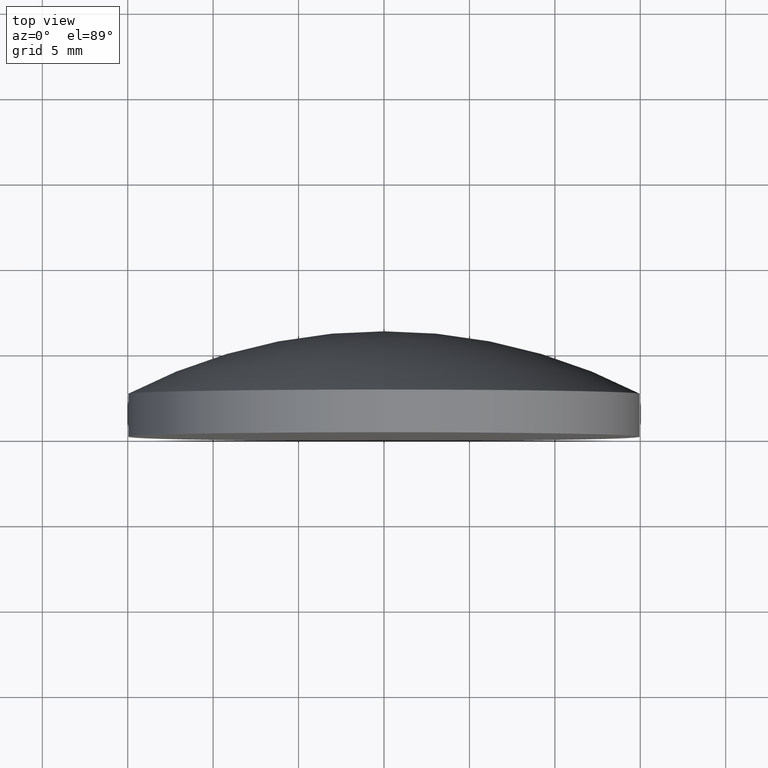
[diagram: clean part render]
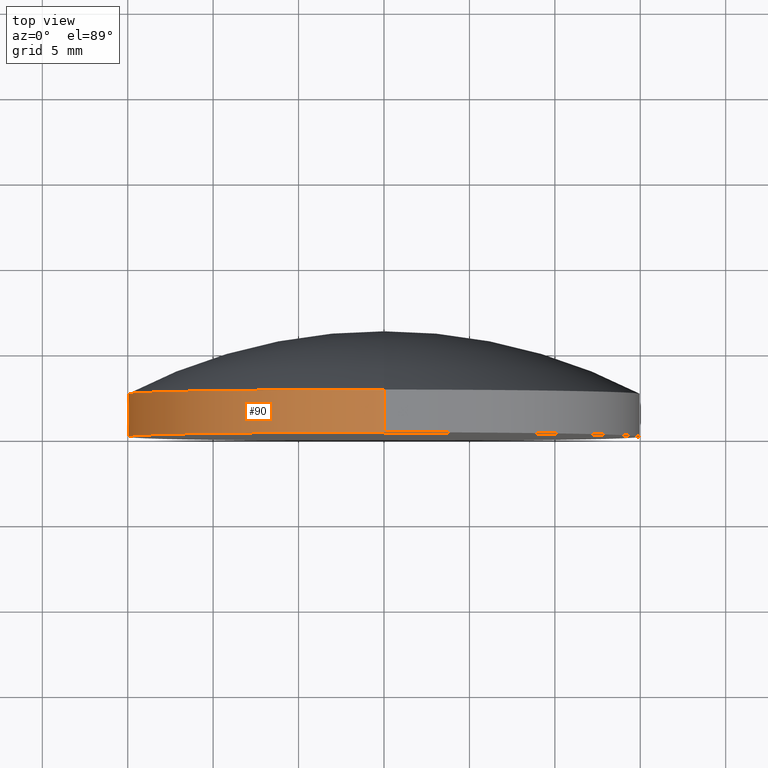
[diagram: same view with one face highlighted and labeled with its STEP entity id]
A machine part, top view. The second image highlights one B-rep face of the part: STEP entity #90.
In plain terms, the highlighted cylindrical surface (partial cylindrical patch) has radius 15 mm, axis along (-0, 1, -0).
Its self-contained STEP definition (entity closure, byte-faithful):
#18 = CIRCLE ( 'NONE', #125, 15.00000000000000000 ) ;
#26 = EDGE_CURVE ( 'NONE', #127, #57, #153, .T. ) ;
#31 = DIRECTION ( 'NONE',  ( -0.000000000000000000, 1.000000000000000000, -0.000000000000000000 ) ) ;
#36 = DIRECTION ( 'NONE',  ( 0.000000000000000000, 0.000000000000000000, 1.000000000000000000 ) ) ;
#37 = FACE_OUTER_BOUND ( 'NONE', #88, .T. ) ;
#39 = ORIENTED_EDGE ( 'NONE', *, *, #95, .T. ) ;
#45 = ORIENTED_EDGE ( 'NONE', *, *, #185, .F. ) ;
#56 = VERTEX_POINT ( 'NONE', #116 ) ;
#57 = VERTEX_POINT ( 'NONE', #178 ) ;
#61 = CARTESIAN_POINT ( 'NONE',  ( 1.836970198721030378E-15, 2.499999999999998668, -15.00000000000000711 ) ) ;
#64 = CARTESIAN_POINT ( 'NONE',  ( 0.000000000000000000, -1.734723475976807094E-15, 15.00000000000000000 ) ) ;
#72 = ORIENTED_EDGE ( 'NONE', *, *, #26, .F. ) ;
#73 = EDGE_CURVE ( 'NONE', #56, #194, #18, .T. ) ;
#74 = CARTESIAN_POINT ( 'NONE',  ( 0.000000000000000000, 2.499999999999998224, 0.000000000000000000 ) ) ;
#79 = DIRECTION ( 'NONE',  ( -0.000000000000000000, 1.000000000000000000, -0.000000000000000000 ) ) ;
#88 = EDGE_LOOP ( 'NONE', ( #45, #124, #39, #72 ) ) ;
#90 = ADVANCED_FACE ( 'NONE', ( #37 ), #150, .T. ) ;
#95 = EDGE_CURVE ( 'NONE', #194, #57, #136, .T. ) ;
#96 = CARTESIAN_POINT ( 'NONE',  ( 0.000000000000000000, -1.734723475976807094E-15, 0.000000000000000000 ) ) ;
#97 = CARTESIAN_POINT ( 'NONE',  ( 0.000000000000000000, 6.169999999999999929, 0.000000000000000000 ) ) ;
#111 = DIRECTION ( 'NONE',  ( -0.000000000000000000, 1.000000000000000000, -0.000000000000000000 ) ) ;
#116 = CARTESIAN_POINT ( 'NONE',  ( 1.836970198721029589E-15, -1.734723475976807094E-15, -15.00000000000000000 ) ) ;
#122 = VECTOR ( 'NONE', #184, 1000.000000000000000 ) ;
#124 = ORIENTED_EDGE ( 'NONE', *, *, #73, .T. ) ;
#125 = AXIS2_PLACEMENT_3D ( 'NONE', #96, #79, #36 ) ;
#127 = VERTEX_POINT ( 'NONE', #61 ) ;
#131 = DIRECTION ( 'NONE',  ( 0.000000000000000000, 0.000000000000000000, 1.000000000000000000 ) ) ;
#133 = CARTESIAN_POINT ( 'NONE',  ( 1.836970198721029589E-15, 6.169999999999999929, -15.00000000000000000 ) ) ;
#136 = LINE ( 'NONE', #179, #122 ) ;
#150 = CYLINDRICAL_SURFACE ( 'NONE', #159, 15.00000000000000000 ) ;
#153 = CIRCLE ( 'NONE', #173, 15.00000000000000000 ) ;
#156 = DIRECTION ( 'NONE',  ( 0.000000000000000000, 0.000000000000000000, 1.000000000000000000 ) ) ;
#159 = AXIS2_PLACEMENT_3D ( 'NONE', #97, #111, #156 ) ;
#173 = AXIS2_PLACEMENT_3D ( 'NONE', #74, #31, #131 ) ;
#177 = VECTOR ( 'NONE', #181, 1000.000000000000000 ) ;
#178 = CARTESIAN_POINT ( 'NONE',  ( 0.000000000000000000, 2.499999999999998668, 15.00000000000000711 ) ) ;
#179 = CARTESIAN_POINT ( 'NONE',  ( 0.000000000000000000, 6.169999999999999929, 15.00000000000000000 ) ) ;
#181 = DIRECTION ( 'NONE',  ( -0.000000000000000000, 1.000000000000000000, -0.000000000000000000 ) ) ;
#184 = DIRECTION ( 'NONE',  ( -0.000000000000000000, 1.000000000000000000, -0.000000000000000000 ) ) ;
#185 = EDGE_CURVE ( 'NONE', #56, #127, #201, .T. ) ;
#194 = VERTEX_POINT ( 'NONE', #64 ) ;
#201 = LINE ( 'NONE', #133, #177 ) ;